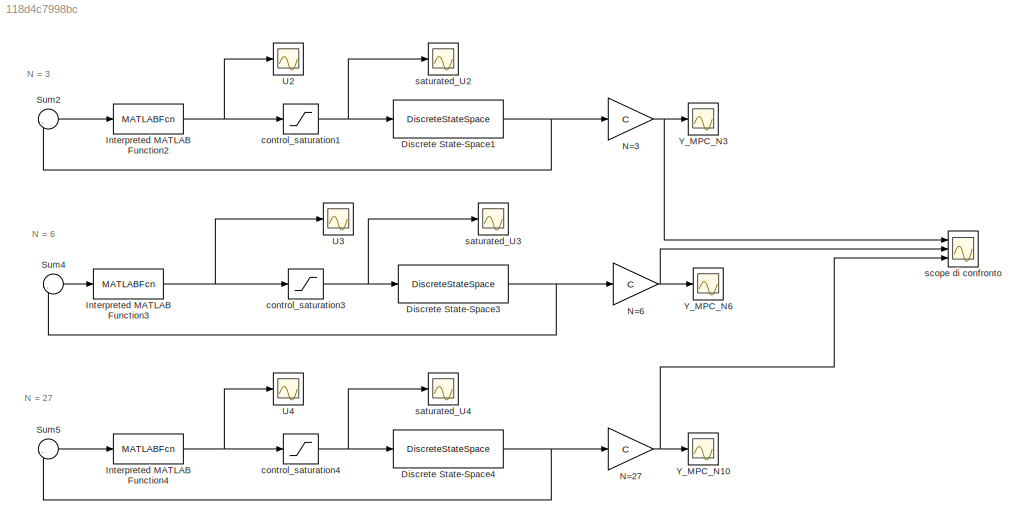
MODEL slx_118d4c7998bc
KIND model
CONFIG AbsTol = auto
CONFIG EnableMultiTasking = off
CONFIG FixedStep = auto
CONFIG MaxStep = auto
CONFIG MinStep = auto
CONFIG RelTol = 1e-3
CONFIG SampleTimeConstraint = Unconstrained
CONFIG SolverName = VariableStepAuto
CONFIG StartTime = 0.0
CONFIG StopTime = 50
BLOCK [DiscreteStateSpace] Discrete State-Space1
  A = A
  B = B
  C = C_states
  D = D_states
  InitialCondition = x0
  SampleTime = Ts
BLOCK [DiscreteStateSpace] Discrete State-Space3
  A = A
  B = B
  C = C_states
  D = D_states
  InitialCondition = x0
  SampleTime = Ts
BLOCK [DiscreteStateSpace] Discrete State-Space4
  A = A
  B = B
  C = C_states
  D = D_states
  InitialCondition = x0
  SampleTime = Ts
BLOCK [MATLABFcn] Interpreted MATLAB Function2
  MATLABFcn = mympc(A,B,Q,R,S,N1,-inf,+inf,u,Ubar,Xbar);
  OutputDimensions = 1
  Ports = [1, 1]
BLOCK [MATLABFcn] Interpreted MATLAB Function3
  MATLABFcn = mympc(A,B,Q,R,S,N2,-inf,+inf,u,Ubar,Xbar);
  OutputDimensions = 1
  Ports = [1, 1]
BLOCK [MATLABFcn] Interpreted MATLAB Function4
  MATLABFcn = mympc(A,B,Q,R,S,N3,-inf,+inf,u,Ubar,Xbar);
  OutputDimensions = 1
  Ports = [1, 1]
BLOCK [Gain] N=27
  Gain = C
  Multiplication = Matrix(K*u) (u vector)
BLOCK [Gain] N=3
  Gain = C
  Multiplication = Matrix(K*u) (u vector)
BLOCK [Gain] N=6
  Gain = C
  Multiplication = Matrix(K*u) (u vector)
BLOCK [Sum] Sum2
  Inputs = |-+
  Ports = [2, 1]
BLOCK [Sum] Sum4
  Inputs = |-+
  Ports = [2, 1]
BLOCK [Sum] Sum5
  Inputs = |-+
  Ports = [2, 1]
BLOCK [Scope] U2
  Floating = off
  NumInputPorts = 1
  Ports = [1]
  ScopeSpecificationString = Simulink.scopes.TimeScopeBlockCfg('CurrentConfiguration', extmgr.ConfigurationSet(extmgr.Configuration('Core','General UI',true),extmgr.Configuration('Core','Source UI',true),extmgr.Configuration('Sources','WiredSimulink',true,'DataLoggingSaveFormat','StructureWithTime','DataLoggingLimitDataPoints',true,'DataLoggingDecimation','1','DataLoggingDecimateData',true,'DataLoggingVariableName','ScopeData...<+1803ch>  <repeated x4 — deduplicated; at blocks: U2, U4, saturated_U2, saturated_U3>
BLOCK [Scope] U3
  Floating = off
  NumInputPorts = 1
  Ports = [1]
  ScopeSpecificationString = Simulink.scopes.TimeScopeBlockCfg('CurrentConfiguration', extmgr.ConfigurationSet(extmgr.Configuration('Core','General UI',true),extmgr.Configuration('Core','Source UI',true),extmgr.Configuration('Sources','WiredSimulink',true,'DataLoggingSaveFormat','StructureWithTime','DataLoggingLimitDataPoints',true,'DataLoggingDecimation','1','DataLoggingDecimateData',true,'DataLoggingVariableName','ScopeData...<+1796ch>
BLOCK [Scope] U4
  Floating = off
  NumInputPorts = 1
  Ports = [1]
BLOCK [Scope] Y_MPC_N10
  Floating = off
  NumInputPorts = 1
  Ports = [1]
  ScopeSpecificationString = Simulink.scopes.TimeScopeBlockCfg('CurrentConfiguration', extmgr.ConfigurationSet(extmgr.Configuration('Core','General UI',true),extmgr.Configuration('Core','Source UI',true),extmgr.Configuration('Sources','WiredSimulink',true,'DataLoggingVariableName','ScopeData6','DataLoggingSaveFormat','StructureWithTime','DataLoggingLimitDataPoints',true,'DataLoggingDecimation','1','DataLoggingDecimateData',tr...<+1766ch>
BLOCK [Scope] Y_MPC_N3
  Floating = off
  NumInputPorts = 1
  Ports = [1]
  ScopeSpecificationString = Simulink.scopes.TimeScopeBlockCfg('CurrentConfiguration', extmgr.ConfigurationSet(extmgr.Configuration('Core','General UI',true),extmgr.Configuration('Core','Source UI',true),extmgr.Configuration('Sources','WiredSimulink',true,'DataLoggingVariableName','ScopeData4','DataLoggingSaveFormat','StructureWithTime','DataLoggingLimitDataPoints',true,'DataLoggingDecimation','1','DataLoggingDecimateData',tr...<+1766ch>
BLOCK [Scope] Y_MPC_N6
  Floating = off
  NumInputPorts = 1
  Ports = [1]
  ScopeSpecificationString = Simulink.scopes.TimeScopeBlockCfg('CurrentConfiguration', extmgr.ConfigurationSet(extmgr.Configuration('Core','General UI',true),extmgr.Configuration('Core','Source UI',true),extmgr.Configuration('Sources','WiredSimulink',true,'DataLoggingVariableName','ScopeData5','DataLoggingSaveFormat','StructureWithTime','DataLoggingLimitDataPoints',true,'DataLoggingDecimation','1','DataLoggingDecimateData',tr...<+1766ch>
BLOCK [Saturate] control_saturation1
  LowerLimit = U_min
  UpperLimit = U_max
BLOCK [Saturate] control_saturation3
  LowerLimit = -inf
  UpperLimit = inf
BLOCK [Saturate] control_saturation4
  LowerLimit = -inf
  UpperLimit = inf
BLOCK [Scope] saturated_U2
  Floating = off
  NumInputPorts = 1
  Ports = [1]
BLOCK [Scope] saturated_U3
  Floating = off
  NumInputPorts = 1
  Ports = [1]
BLOCK [Scope] saturated_U4
  Floating = off
  NumInputPorts = 1
  Ports = [1]
  ScopeSpecificationString = Simulink.scopes.TimeScopeBlockCfg('CurrentConfiguration', extmgr.ConfigurationSet(extmgr.Configuration('Core','General UI',true),extmgr.Configuration('Core','Source UI',true),extmgr.Configuration('Sources','WiredSimulink',true,'DataLoggingSaveFormat','StructureWithTime','DataLoggingLimitDataPoints',true,'DataLoggingDecimation','1','DataLoggingDecimateData',true),extmgr.Configuration('Visuals','Tim...<+1764ch>
BLOCK [Scope] scope di confronto
  Floating = off
  NumInputPorts = 3
  Ports = [3]
  ScopeSpecificationString = Simulink.scopes.TimeScopeBlockCfg('CurrentConfiguration', extmgr.ConfigurationSet(extmgr.Configuration('Core','General UI',true),extmgr.Configuration('Core','Source UI',true),extmgr.Configuration('Sources','WiredSimulink',true,'DataLoggingSaveFormat','StructureWithTime','DataLoggingLimitDataPoints',true,'DataLoggingDecimation','1','DataLoggingDecimateData',true,'DataLoggingVariableName','ScopeData...<+1860ch>
ANNOTATION (root): N = 27
ANNOTATION (root): N = 3
ANNOTATION (root): N = 6
NET Discrete State-Space1:1 -> N=3:1, Sum2:2
NET Discrete State-Space3:1 -> N=6:1, Sum4:2
NET Discrete State-Space4:1 -> N=27:1, Sum5:2
NET Interpreted MATLAB Function2:1 -> U2:1, control_saturation1:1
NET Interpreted MATLAB Function3:1 -> U3:1, control_saturation3:1
NET Interpreted MATLAB Function4:1 -> U4:1, control_saturation4:1
NET N=27:1 -> Y_MPC_N10:1, scope di confronto:3
NET N=3:1 -> Y_MPC_N3:1, scope di confronto:1
NET N=6:1 -> Y_MPC_N6:1, scope di confronto:2
LINE Sum2:1 -> Interpreted MATLAB Function2:1
LINE Sum4:1 -> Interpreted MATLAB Function3:1
LINE Sum5:1 -> Interpreted MATLAB Function4:1
NET control_saturation1:1 -> Discrete State-Space1:1, saturated_U2:1
NET control_saturation3:1 -> Discrete State-Space3:1, saturated_U3:1
NET control_saturation4:1 -> Discrete State-Space4:1, saturated_U4:1
note: NET lines group one-source signal fan-out (src -> all destinations, sorted); 1:1 wires keep LINE
